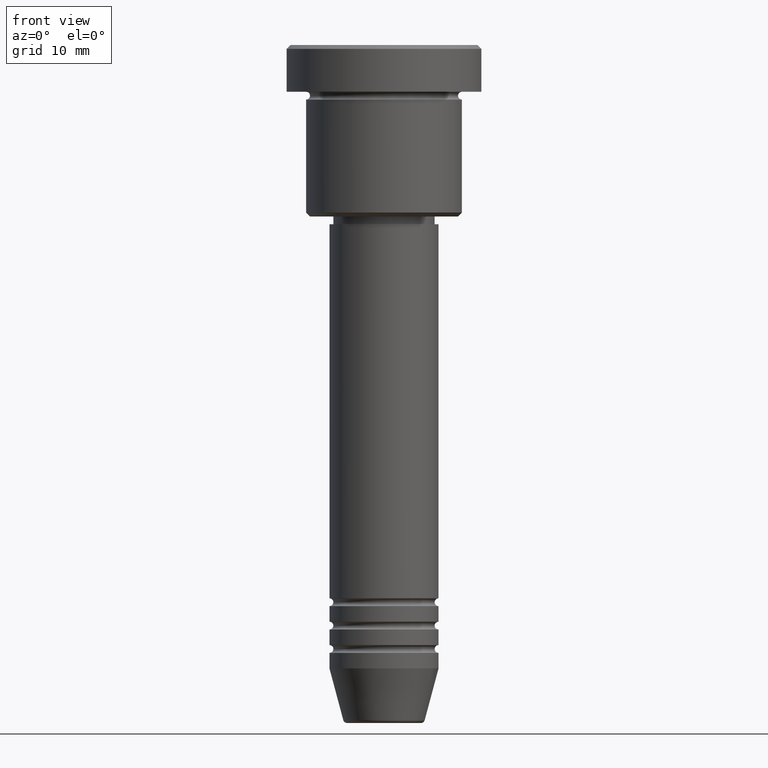
[diagram: clean part render]
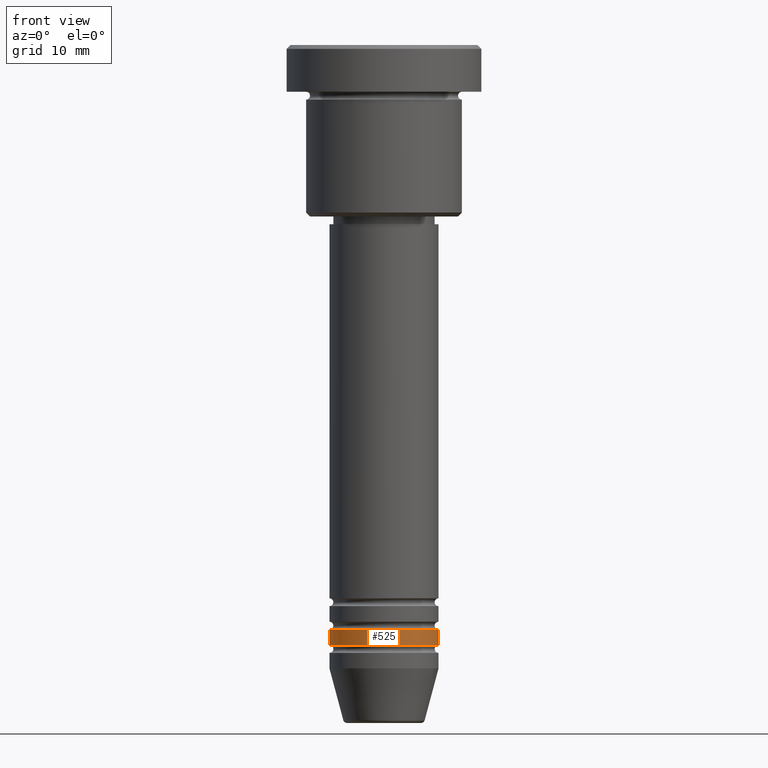
[diagram: same view with one face highlighted and labeled with its STEP entity id]
A machine part, front view. The second image highlights one B-rep face of the part: STEP entity #525.
In plain terms, the highlighted cylindrical surface (partial cylindrical patch) has radius 7 mm, axis along (-0, -0, 1).
Its self-contained STEP definition (entity closure, byte-faithful):
#8 = CARTESIAN_POINT ( 'NONE',  ( -7.000000000000000000, 8.572527594031473190E-16, -74.99999999999997158 ) ) ;
#53 = EDGE_CURVE ( 'NONE', #371, #1052, #81, .T. ) ;
#81 = LINE ( 'NONE', #956, #1058 ) ;
#85 = DIRECTION ( 'NONE',  ( -0.000000000000000000, -0.000000000000000000, 1.000000000000000000 ) ) ;
#114 = CARTESIAN_POINT ( 'NONE',  ( -7.000000000000000000, 8.572527594031473190E-16, 0.000000000000000000 ) ) ;
#167 = CARTESIAN_POINT ( 'NONE',  ( 0.000000000000000000, 0.000000000000000000, 0.000000000000000000 ) ) ;
#184 = EDGE_CURVE ( 'NONE', #1010, #1052, #1093, .T. ) ;
#223 = EDGE_LOOP ( 'NONE', ( #1128, #1035, #943, #332 ) ) ;
#241 = CARTESIAN_POINT ( 'NONE',  ( -7.000000000000000000, 8.572527594031473190E-16, -76.99999999999997158 ) ) ;
#293 = LINE ( 'NONE', #114, #468 ) ;
#332 = ORIENTED_EDGE ( 'NONE', *, *, #184, .F. ) ;
#371 = VERTEX_POINT ( 'NONE', #964 ) ;
#404 = AXIS2_PLACEMENT_3D ( 'NONE', #438, #445, #1094 ) ;
#432 = EDGE_CURVE ( 'NONE', #774, #371, #1060, .T. ) ;
#434 = DIRECTION ( 'NONE',  ( -0.000000000000000000, -0.000000000000000000, 1.000000000000000000 ) ) ;
#438 = CARTESIAN_POINT ( 'NONE',  ( 0.000000000000000000, 0.000000000000000000, -76.99999999999997158 ) ) ;
#445 = DIRECTION ( 'NONE',  ( -0.000000000000000000, -0.000000000000000000, 1.000000000000000000 ) ) ;
#452 = FACE_OUTER_BOUND ( 'NONE', #223, .T. ) ;
#465 = DIRECTION ( 'NONE',  ( -0.000000000000000000, -0.000000000000000000, 1.000000000000000000 ) ) ;
#468 = VECTOR ( 'NONE', #465, 1000.000000000000000 ) ;
#525 = ADVANCED_FACE ( 'NONE', ( #452 ), #733, .T. ) ;
#581 = AXIS2_PLACEMENT_3D ( 'NONE', #690, #85, #634 ) ;
#634 = DIRECTION ( 'NONE',  ( 1.000000000000000000, 0.000000000000000000, 0.000000000000000000 ) ) ;
#690 = CARTESIAN_POINT ( 'NONE',  ( 0.000000000000000000, 0.000000000000000000, -74.99999999999997158 ) ) ;
#733 = CYLINDRICAL_SURFACE ( 'NONE', #832, 7.000000000000000000 ) ;
#758 = CARTESIAN_POINT ( 'NONE',  ( 7.000000000000000000, 0.000000000000000000, -74.99999999999997158 ) ) ;
#774 = VERTEX_POINT ( 'NONE', #241 ) ;
#832 = AXIS2_PLACEMENT_3D ( 'NONE', #167, #434, #1076 ) ;
#943 = ORIENTED_EDGE ( 'NONE', *, *, #53, .T. ) ;
#956 = CARTESIAN_POINT ( 'NONE',  ( 7.000000000000000000, 0.000000000000000000, 0.000000000000000000 ) ) ;
#964 = CARTESIAN_POINT ( 'NONE',  ( 7.000000000000000000, 0.000000000000000000, -76.99999999999997158 ) ) ;
#1010 = VERTEX_POINT ( 'NONE', #8 ) ;
#1035 = ORIENTED_EDGE ( 'NONE', *, *, #432, .T. ) ;
#1052 = VERTEX_POINT ( 'NONE', #758 ) ;
#1058 = VECTOR ( 'NONE', #1166, 1000.000000000000000 ) ;
#1060 = CIRCLE ( 'NONE', #404, 7.000000000000000000 ) ;
#1076 = DIRECTION ( 'NONE',  ( 1.000000000000000000, 0.000000000000000000, 0.000000000000000000 ) ) ;
#1093 = CIRCLE ( 'NONE', #581, 7.000000000000000000 ) ;
#1094 = DIRECTION ( 'NONE',  ( 1.000000000000000000, 0.000000000000000000, 0.000000000000000000 ) ) ;
#1128 = ORIENTED_EDGE ( 'NONE', *, *, #1135, .F. ) ;
#1135 = EDGE_CURVE ( 'NONE', #774, #1010, #293, .T. ) ;
#1166 = DIRECTION ( 'NONE',  ( -0.000000000000000000, -0.000000000000000000, 1.000000000000000000 ) ) ;